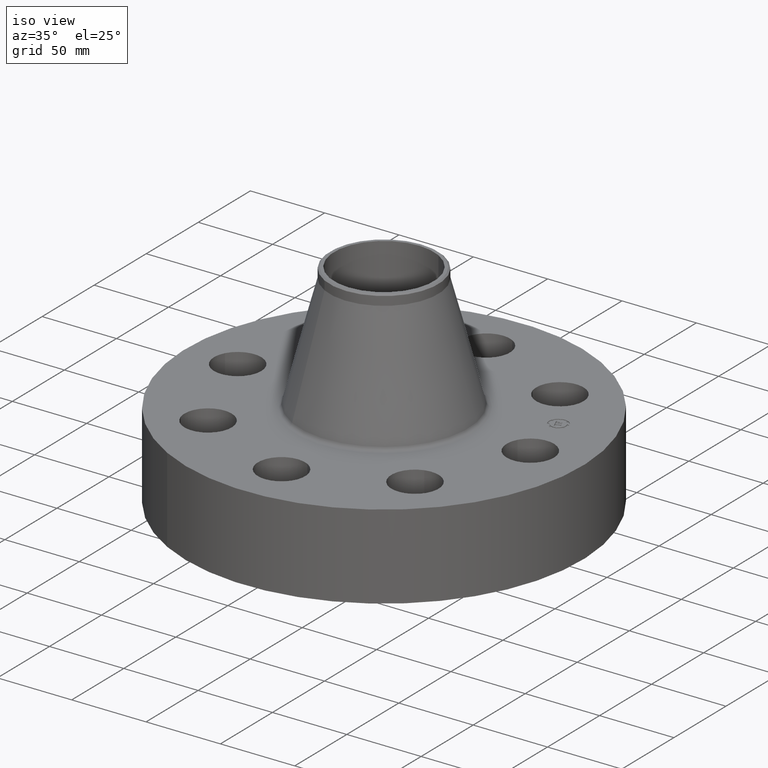
[diagram: clean part render]
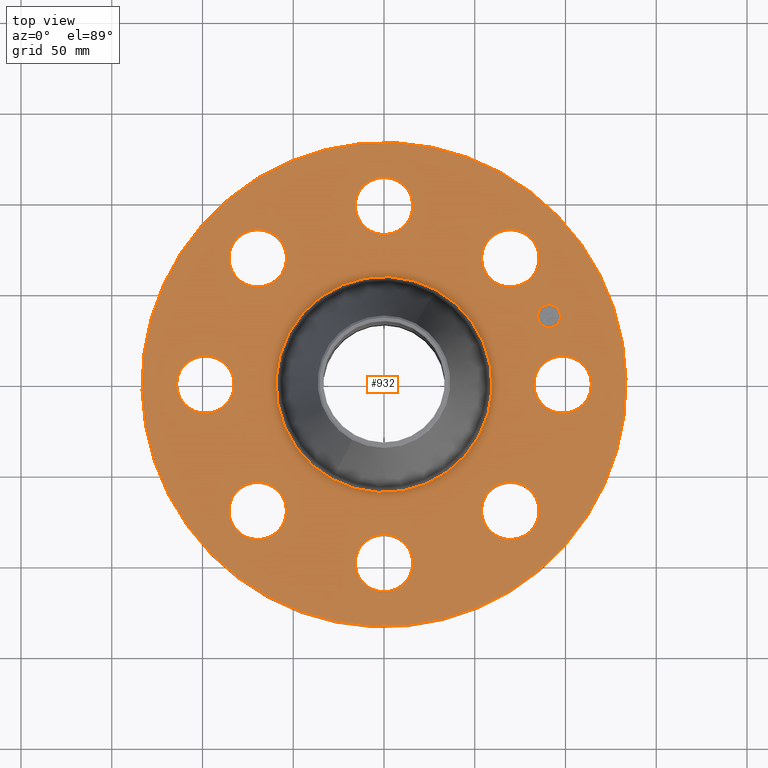
[diagram: tour spotlight — one face highlighted and labeled with its STEP entity id]
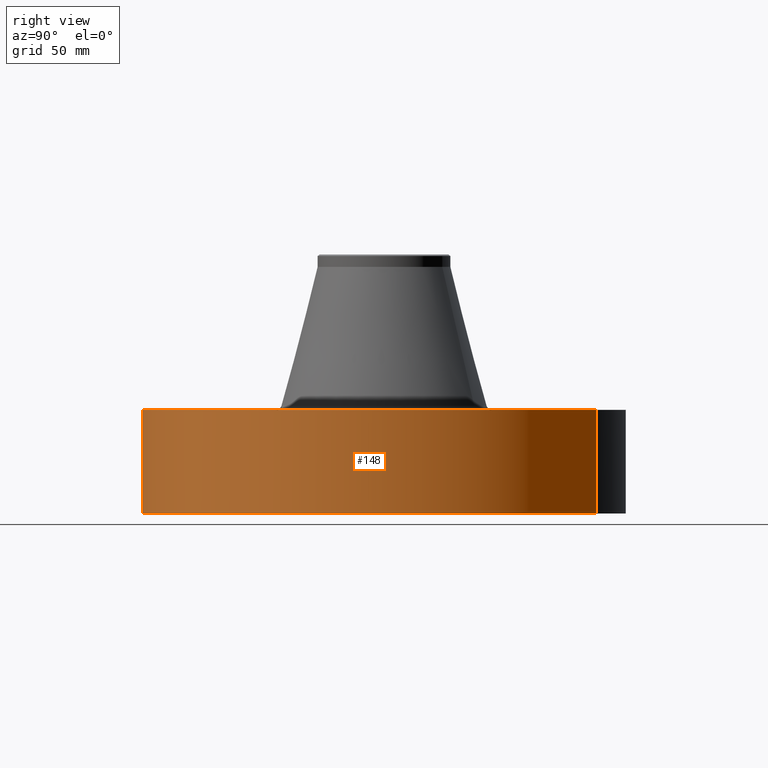
[diagram: tour spotlight — one face highlighted and labeled with its STEP entity id]
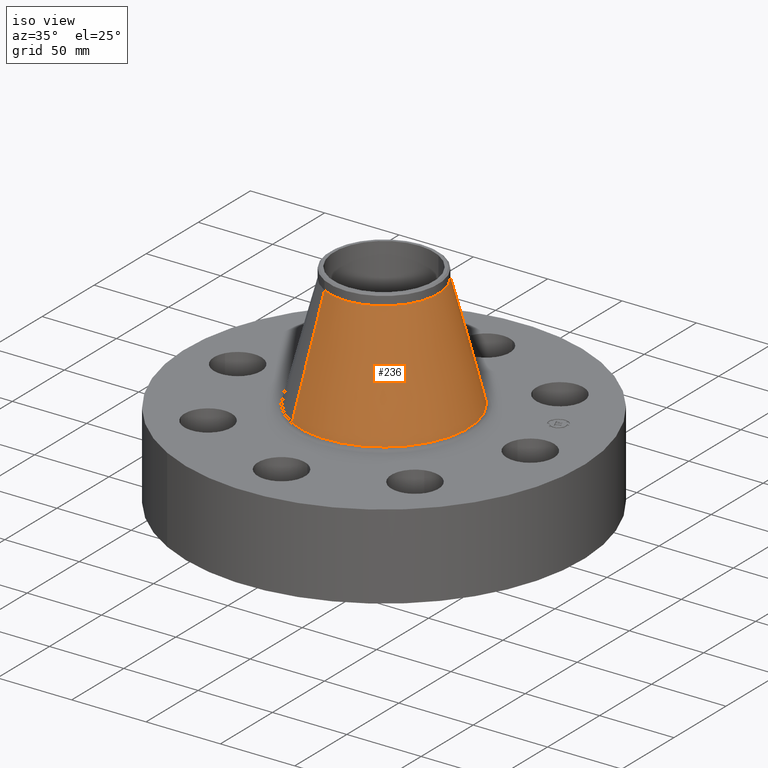
[diagram: tour spotlight — one face highlighted and labeled with its STEP entity id]
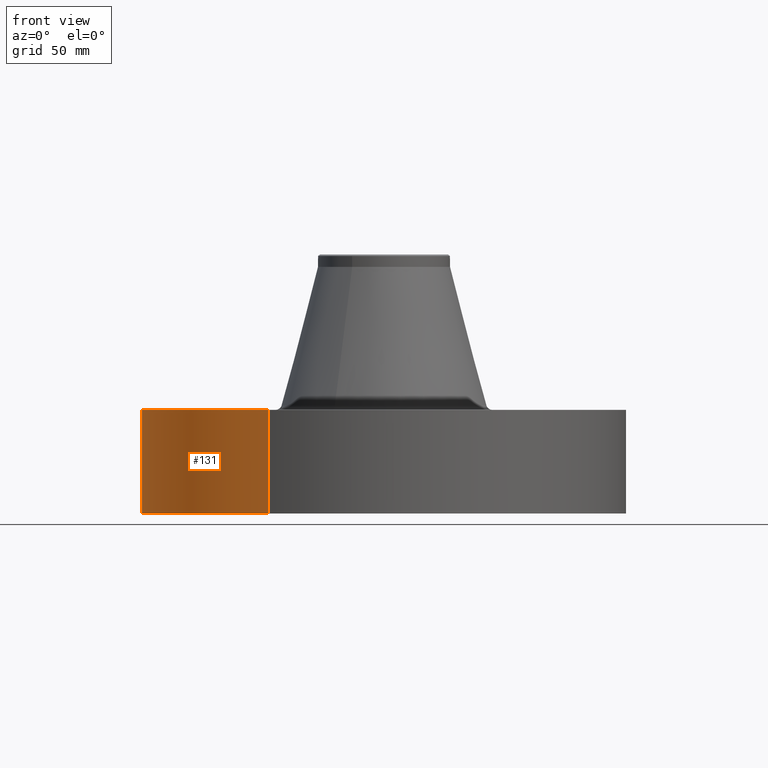
[diagram: tour spotlight — one face highlighted and labeled with its STEP entity id]
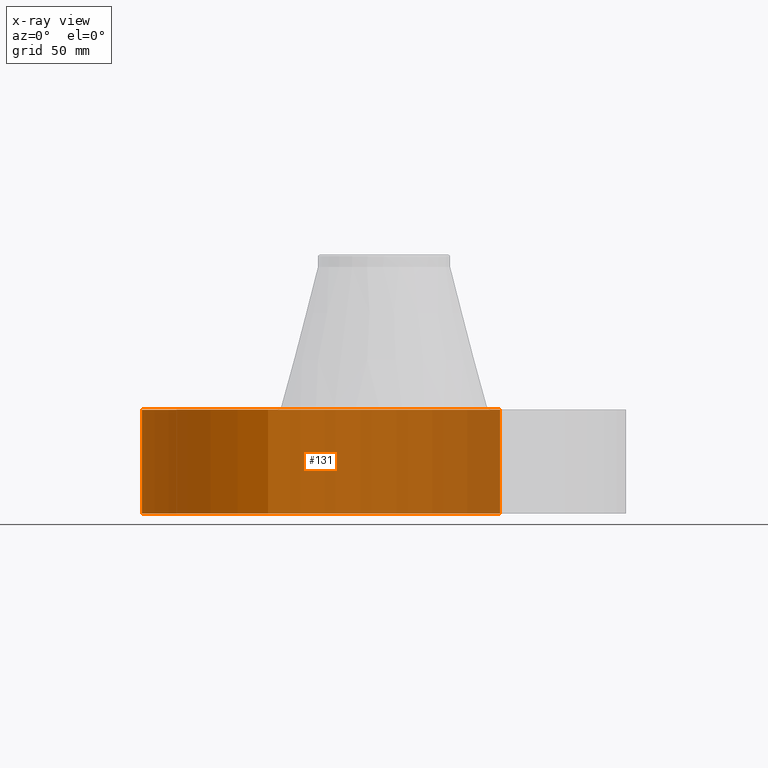
[diagram: x-ray of the same camera — body ghosted, this tour face saturated]
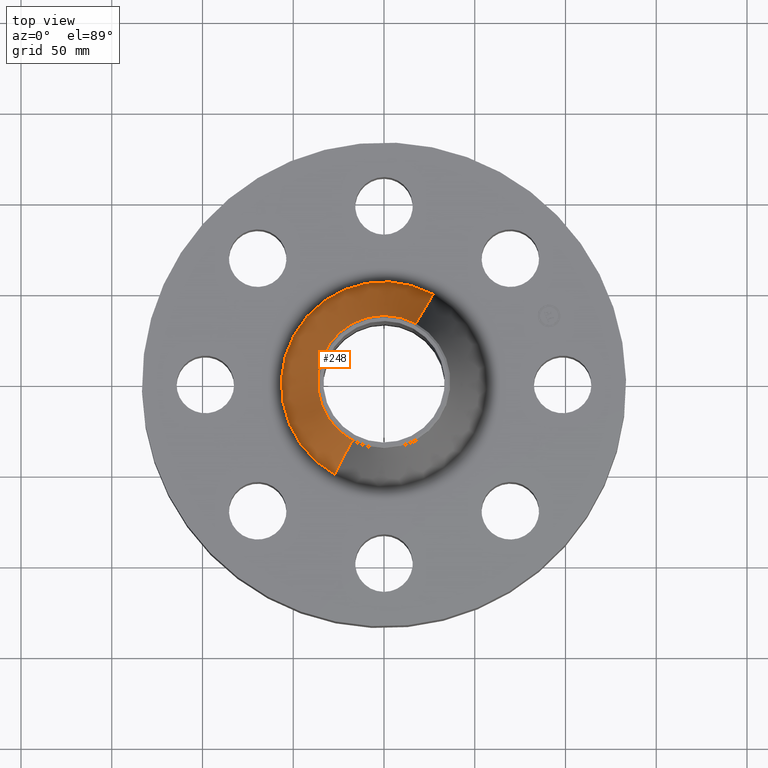
[diagram: tour spotlight — one face highlighted and labeled with its STEP entity id]
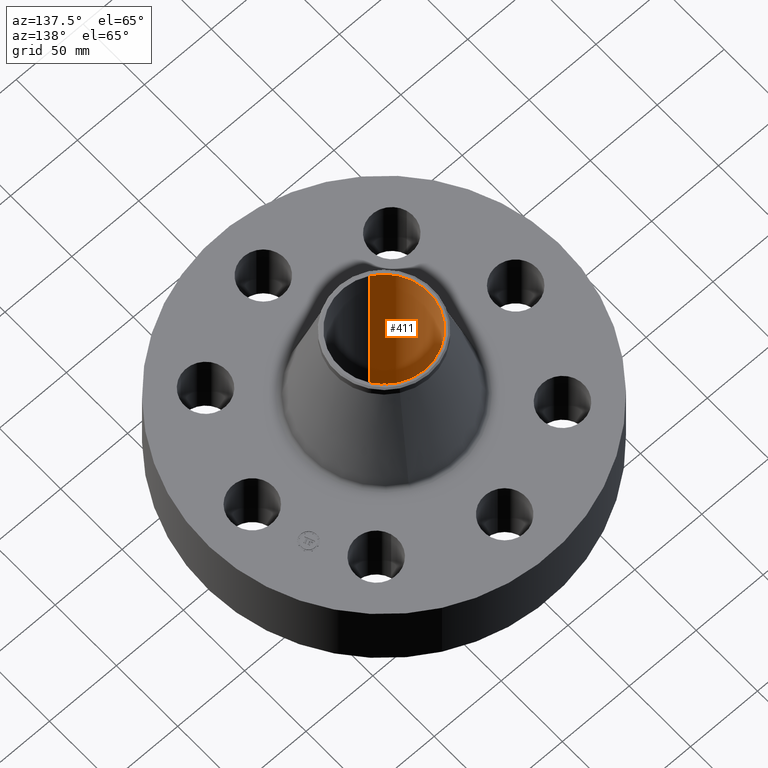
[diagram: tour spotlight — one face highlighted and labeled with its STEP entity id]
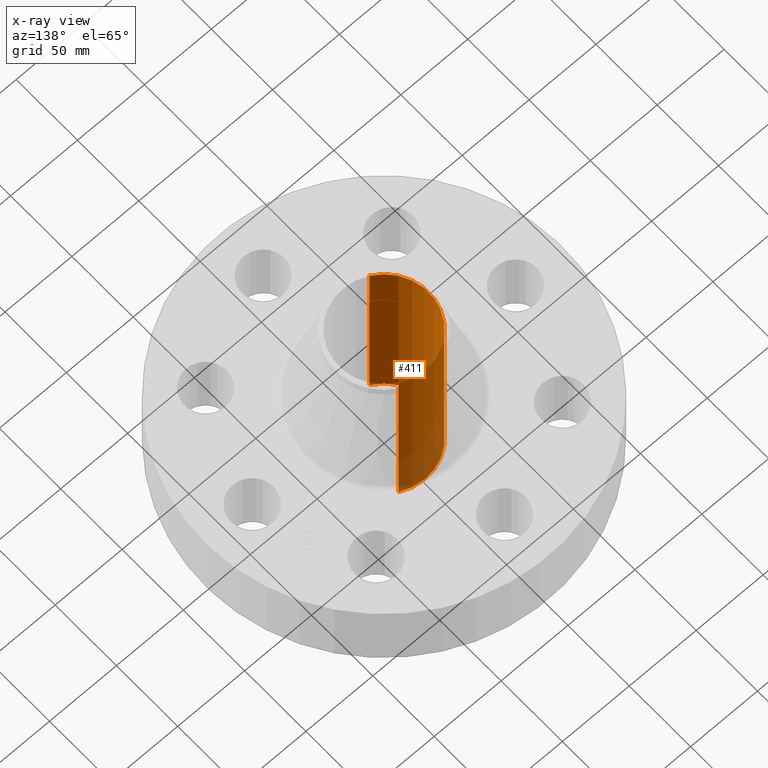
[diagram: x-ray of the same camera — body ghosted, this tour face saturated]
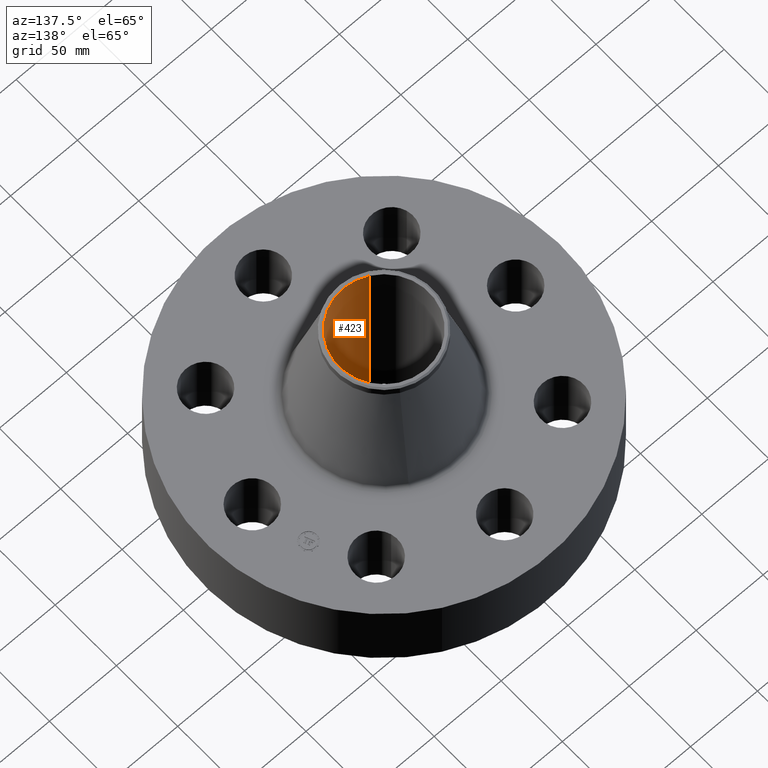
[diagram: tour spotlight — one face highlighted and labeled with its STEP entity id]
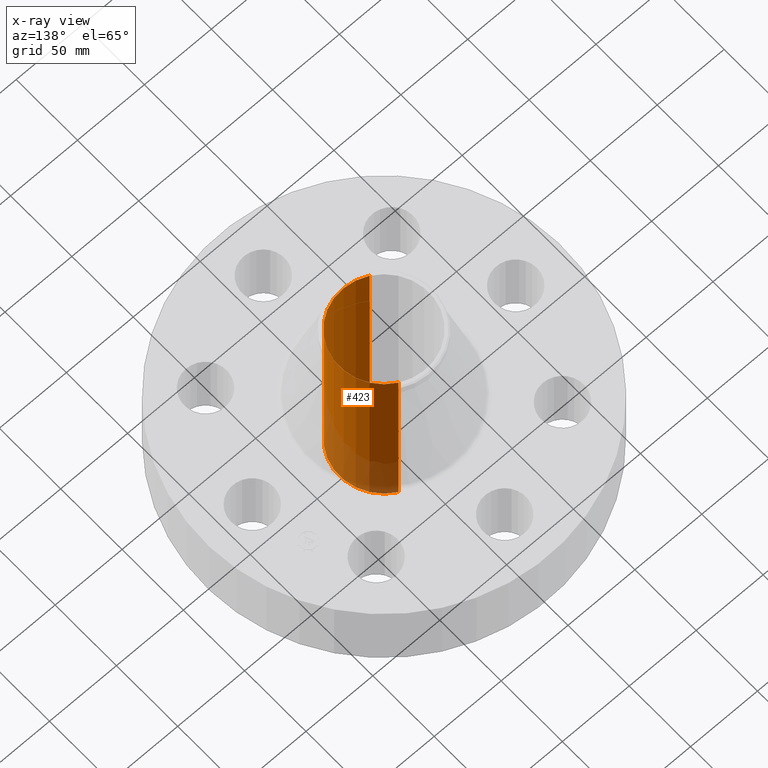
[diagram: x-ray of the same camera — body ghosted, this tour face saturated]
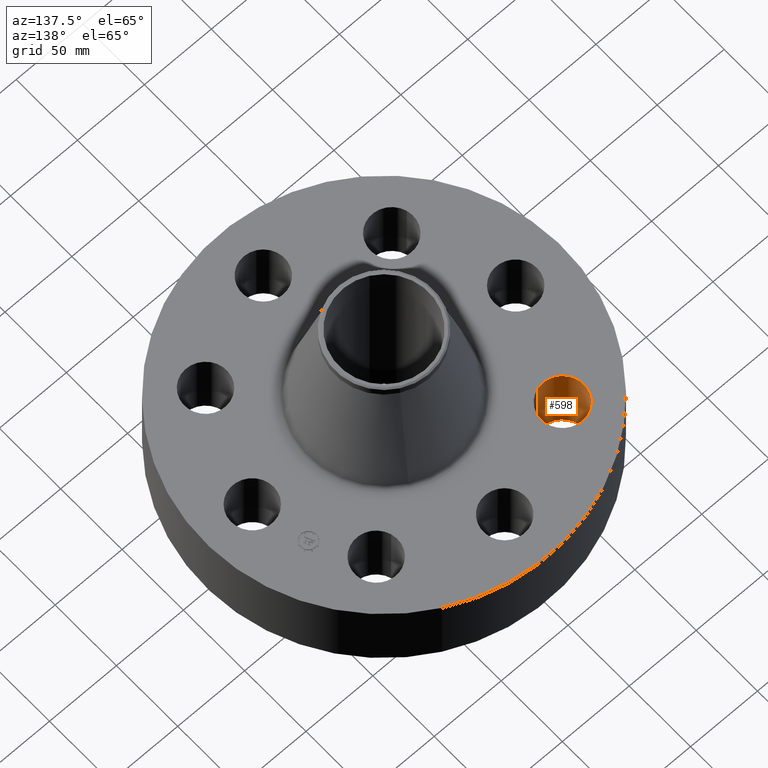
[diagram: tour spotlight — one face highlighted and labeled with its STEP entity id]
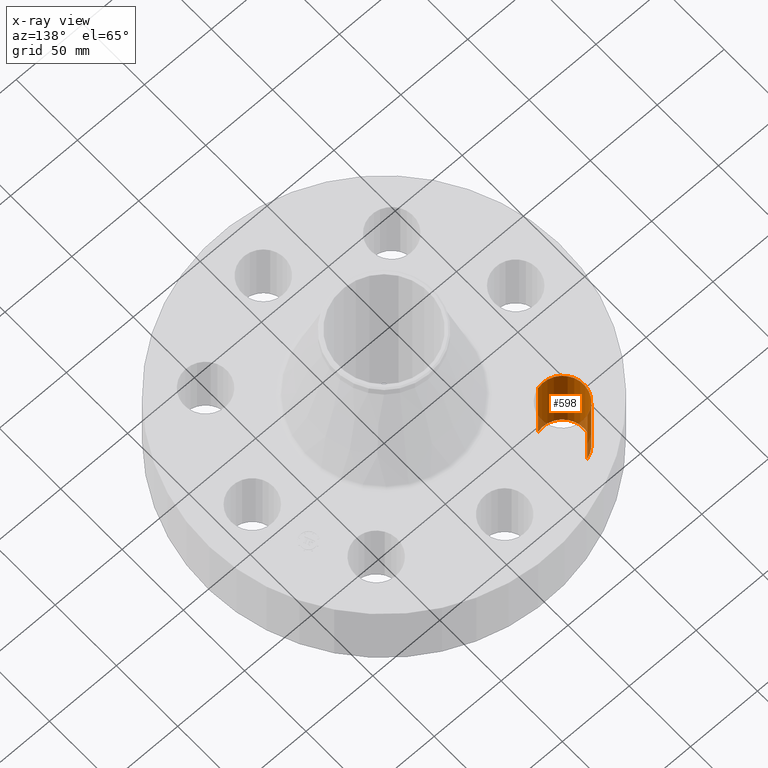
[diagram: x-ray of the same camera — body ghosted, this tour face saturated]
A machine part: a face-by-face anatomy tour. The part has 416 B-rep faces; the first image is the clean iso view, then the 8 largest visible faces are spotlighted one at a time (largest first), each with its STEP entity span.

Face 1 — top view, entity #932. In plain terms, the highlighted planar face has unit normal (0, 0, -1).
Definition (entity closure, byte-faithful):
#65=AXIS2_PLACEMENT_3D('Circle Axis2P3D',#63,#64,$) ;
#82=AXIS2_PLACEMENT_3D('Circle Axis2P3D',#80,#81,$) ;
#115=AXIS2_PLACEMENT_3D('Circle Axis2P3D',#113,#114,$) ;
#139=AXIS2_PLACEMENT_3D('Circle Axis2P3D',#137,#138,$) ;
#156=AXIS2_PLACEMENT_3D('Circle Axis2P3D',#154,#155,$) ;
#191=AXIS2_PLACEMENT_3D('Circle Axis2P3D',#189,#190,$) ;
#589=AXIS2_PLACEMENT_3D('Circle Axis2P3D',#587,#588,$) ;
#601=AXIS2_PLACEMENT_3D('Circle Axis2P3D',#599,#600,$) ;
#632=AXIS2_PLACEMENT_3D('Circle Axis2P3D',#630,#631,$) ;
#644=AXIS2_PLACEMENT_3D('Circle Axis2P3D',#642,#643,$) ;
#675=AXIS2_PLACEMENT_3D('Circle Axis2P3D',#673,#674,$) ;
#687=AXIS2_PLACEMENT_3D('Circle Axis2P3D',#685,#686,$) ;
#718=AXIS2_PLACEMENT_3D('Circle Axis2P3D',#716,#717,$) ;
#730=AXIS2_PLACEMENT_3D('Circle Axis2P3D',#728,#729,$) ;
#761=AXIS2_PLACEMENT_3D('Circle Axis2P3D',#759,#760,$) ;
#773=AXIS2_PLACEMENT_3D('Circle Axis2P3D',#771,#772,$) ;
#804=AXIS2_PLACEMENT_3D('Circle Axis2P3D',#802,#803,$) ;
#816=AXIS2_PLACEMENT_3D('Circle Axis2P3D',#814,#815,$) ;
#847=AXIS2_PLACEMENT_3D('Circle Axis2P3D',#845,#846,$) ;
#859=AXIS2_PLACEMENT_3D('Circle Axis2P3D',#857,#858,$) ;
#872=AXIS2_PLACEMENT_3D('Plane Axis2P3D',#869,#870,#871) ;
#916=AXIS2_PLACEMENT_3D('Circle Axis2P3D',#914,#915,$) ;
#925=AXIS2_PLACEMENT_3D('Circle Axis2P3D',#923,#924,$) ;
#46=CARTESIAN_POINT('Vertex',(3.32651089883,0.299640961629,2.25000000001)) ;
#60=CARTESIAN_POINT('Vertex',(4.4234891012,-0.299640961629,2.25000000001)) ;
#63=CARTESIAN_POINT('Axis2P3D Location',(3.87500000002,0.,2.25000000001)) ;
#80=CARTESIAN_POINT('Axis2P3D Location',(3.87500000002,0.,2.25000000001)) ;
#110=CARTESIAN_POINT('Vertex',(-2.51698407768,-4.60730844994,2.25000000001)) ;
#113=CARTESIAN_POINT('Axis2P3D Location',(0.,0.,2.25000000001)) ;
#117=CARTESIAN_POINT('Vertex',(2.51698407768,4.60730844994,2.25000000001)) ;
#137=CARTESIAN_POINT('Axis2P3D Location',(0.,0.,2.25000000001)) ;
#154=CARTESIAN_POINT('Axis2P3D Location',(0.,0.,2.25000000001)) ;
#158=CARTESIAN_POINT('Vertex',(1.12313842195,2.05589109117,2.25000000001)) ;
#160=CARTESIAN_POINT('Vertex',(-1.12313842195,-2.05589109117,2.25000000001)) ;
#189=CARTESIAN_POINT('Axis2P3D Location',(0.,0.,2.25000000001)) ;
#577=CARTESIAN_POINT('Vertex',(-2.56407657014,2.14032025837,2.25000000001)) ;
#584=CARTESIAN_POINT('Vertex',(-2.91600098407,3.33975729585,2.25000000001)) ;
#587=CARTESIAN_POINT('Axis2P3D Location',(-2.74003877711,2.74003877711,2.25000000001)) ;
#599=CARTESIAN_POINT('Axis2P3D Location',(-2.74003877711,2.74003877711,2.25000000001)) ;
#620=CARTESIAN_POINT('Vertex',(0.299640961629,-3.32651089883,2.25000000001)) ;
#627=CARTESIAN_POINT('Vertex',(-0.299640961629,-4.4234891012,2.25000000001)) ;
#630=CARTESIAN_POINT('Axis2P3D Location',(2.37275317336E-016,-3.87500000002,2.25000000001)) ;
#642=CARTESIAN_POINT('Axis2P3D Location',(2.37275317336E-016,-3.87500000002,2.25000000001)) ;
#663=CARTESIAN_POINT('Vertex',(-0.299640961629,3.32651089883,2.25000000001)) ;
#670=CARTESIAN_POINT('Vertex',(0.299640961629,4.4234891012,2.25000000001)) ;
#673=CARTESIAN_POINT('Axis2P3D Location',(-1.52343482905E-016,3.87500000002,2.25000000001)) ;
#685=CARTESIAN_POINT('Axis2P3D Location',(-1.52343482905E-016,3.87500000002,2.25000000001)) ;
#706=CARTESIAN_POINT('Vertex',(-2.14032025837,-2.56407657014,2.25000000001)) ;
#713=CARTESIAN_POINT('Vertex',(-3.33975729585,-2.91600098407,2.25000000001)) ;
#716=CARTESIAN_POINT('Axis2P3D Location',(-2.74003877711,-2.74003877711,2.25000000001)) ;
#728=CARTESIAN_POINT('Axis2P3D Location',(-2.74003877711,-2.74003877711,2.25000000001)) ;
#749=CARTESIAN_POINT('Vertex',(2.14032025837,2.56407657014,2.25000000001)) ;
#756=CARTESIAN_POINT('Vertex',(3.33975729585,2.91600098407,2.25000000001)) ;
#759=CARTESIAN_POINT('Axis2P3D Location',(2.74003877711,2.74003877711,2.25000000001)) ;
#771=CARTESIAN_POINT('Axis2P3D Location',(2.74003877711,2.74003877711,2.25000000001)) ;
#792=CARTESIAN_POINT('Vertex',(-3.32651089883,-0.299640961629,2.25000000001)) ;
#799=CARTESIAN_POINT('Vertex',(-4.4234891012,0.299640961629,2.25000000001)) ;
#802=CARTESIAN_POINT('Axis2P3D Location',(-3.87500000002,-4.74550634671E-016,2.25000000001)) ;
#814=CARTESIAN_POINT('Axis2P3D Location',(-3.87500000002,-4.74550634671E-016,2.25000000001)) ;
#835=CARTESIAN_POINT('Vertex',(2.56407657014,-2.14032025837,2.25000000001)) ;
#842=CARTESIAN_POINT('Vertex',(2.91600098407,-3.33975729585,2.25000000001)) ;
#845=CARTESIAN_POINT('Axis2P3D Location',(2.74003877711,-2.74003877711,2.25000000001)) ;
#857=CARTESIAN_POINT('Axis2P3D Location',(2.74003877711,-2.74003877711,2.25000000001)) ;
#869=CARTESIAN_POINT('Axis2P3D Location',(0.,5.25000000002,2.25000000001)) ;
#914=CARTESIAN_POINT('Axis2P3D Location',(3.5800331885,1.48289830042,2.25000000001)) ;
#918=CARTESIAN_POINT('Vertex',(3.48531903898,1.71155848472,2.25000000001)) ;
#920=CARTESIAN_POINT('Vertex',(3.67474733801,1.25423811612,2.25000000001)) ;
#923=CARTESIAN_POINT('Axis2P3D Location',(3.5800331885,1.48289830042,2.25000000001)) ;
#64=DIRECTION('Axis2P3D Direction',(0.,-0.,-0.0393700787402)) ;
#81=DIRECTION('Axis2P3D Direction',(0.,-0.,-0.0393700787402)) ;
#114=DIRECTION('Axis2P3D Direction',(0.,0.,-0.0393700787402)) ;
#138=DIRECTION('Axis2P3D Direction',(0.,0.,-0.0393700787402)) ;
#155=DIRECTION('Axis2P3D Direction',(0.,0.,-0.0393700787402)) ;
#190=DIRECTION('Axis2P3D Direction',(0.,0.,-0.0393700787402)) ;
#588=DIRECTION('Axis2P3D Direction',(0.,0.,-0.0393700787402)) ;
#600=DIRECTION('Axis2P3D Direction',(0.,0.,-0.0393700787402)) ;
#631=DIRECTION('Axis2P3D Direction',(0.,-0.,-0.0393700787402)) ;
#643=DIRECTION('Axis2P3D Direction',(0.,-0.,-0.0393700787402)) ;
#674=DIRECTION('Axis2P3D Direction',(0.,0.,-0.0393700787402)) ;
#686=DIRECTION('Axis2P3D Direction',(0.,0.,-0.0393700787402)) ;
#717=DIRECTION('Axis2P3D Direction',(-0.,0.,-0.0393700787402)) ;
#729=DIRECTION('Axis2P3D Direction',(-0.,0.,-0.0393700787402)) ;
#760=DIRECTION('Axis2P3D Direction',(0.,0.,-0.0393700787402)) ;
#772=DIRECTION('Axis2P3D Direction',(0.,0.,-0.0393700787402)) ;
#803=DIRECTION('Axis2P3D Direction',(-0.,0.,-0.0393700787402)) ;
#815=DIRECTION('Axis2P3D Direction',(-0.,0.,-0.0393700787402)) ;
#846=DIRECTION('Axis2P3D Direction',(0.,-0.,-0.0393700787402)) ;
#858=DIRECTION('Axis2P3D Direction',(0.,-0.,-0.0393700787402)) ;
#870=DIRECTION('Axis2P3D Direction',(0.,0.,-0.0393700787402)) ;
#871=DIRECTION('Axis2P3D XDirection',(0.0393700787402,0.,0.)) ;
#915=DIRECTION('Axis2P3D Direction',(0.,0.,-0.0393700787402)) ;
#924=DIRECTION('Axis2P3D Direction',(0.,0.,-0.0393700787402)) ;
#875=ORIENTED_EDGE('',*,*,#141,.F.) ;
#876=ORIENTED_EDGE('',*,*,#119,.F.) ;
#879=ORIENTED_EDGE('',*,*,#67,.T.) ;
#880=ORIENTED_EDGE('',*,*,#84,.T.) ;
#883=ORIENTED_EDGE('',*,*,#193,.T.) ;
#884=ORIENTED_EDGE('',*,*,#162,.T.) ;
#887=ORIENTED_EDGE('',*,*,#861,.T.) ;
#888=ORIENTED_EDGE('',*,*,#849,.T.) ;
#891=ORIENTED_EDGE('',*,*,#646,.T.) ;
#892=ORIENTED_EDGE('',*,*,#634,.T.) ;
#895=ORIENTED_EDGE('',*,*,#732,.T.) ;
#896=ORIENTED_EDGE('',*,*,#720,.T.) ;
#899=ORIENTED_EDGE('',*,*,#818,.T.) ;
#900=ORIENTED_EDGE('',*,*,#806,.T.) ;
#903=ORIENTED_EDGE('',*,*,#603,.T.) ;
#904=ORIENTED_EDGE('',*,*,#591,.T.) ;
#907=ORIENTED_EDGE('',*,*,#689,.T.) ;
#908=ORIENTED_EDGE('',*,*,#677,.T.) ;
#911=ORIENTED_EDGE('',*,*,#775,.T.) ;
#912=ORIENTED_EDGE('',*,*,#763,.T.) ;
#929=ORIENTED_EDGE('',*,*,#922,.T.) ;
#930=ORIENTED_EDGE('',*,*,#927,.T.) ;
#881=FACE_BOUND('',#878,.T.) ;
#885=FACE_BOUND('',#882,.T.) ;
#889=FACE_BOUND('',#886,.T.) ;
#893=FACE_BOUND('',#890,.T.) ;
#897=FACE_BOUND('',#894,.T.) ;
#901=FACE_BOUND('',#898,.T.) ;
#905=FACE_BOUND('',#902,.T.) ;
#909=FACE_BOUND('',#906,.T.) ;
#913=FACE_BOUND('',#910,.T.) ;
#931=FACE_BOUND('',#928,.T.) ;
#932=ADVANCED_FACE('PartBody',(#877,#881,#885,#889,#893,#897,#901,#905,#909,#913,#931),#873,.F.) ;
#66=CIRCLE('generated circle',#65,0.625000000002) ;
#83=CIRCLE('generated circle',#82,0.625000000002) ;
#116=CIRCLE('generated circle',#115,5.25000000002) ;
#140=CIRCLE('generated circle',#139,5.25000000002) ;
#157=CIRCLE('generated circle',#156,2.34267541362) ;
#192=CIRCLE('generated circle',#191,2.34267541362) ;
#590=CIRCLE('generated circle',#589,0.625000000003) ;
#602=CIRCLE('generated circle',#601,0.625000000003) ;
#633=CIRCLE('generated circle',#632,0.625000000002) ;
#645=CIRCLE('generated circle',#644,0.625000000002) ;
#676=CIRCLE('generated circle',#675,0.625000000002) ;
#688=CIRCLE('generated circle',#687,0.625000000002) ;
#719=CIRCLE('generated circle',#718,0.625000000002) ;
#731=CIRCLE('generated circle',#730,0.625000000002) ;
#762=CIRCLE('generated circle',#761,0.625000000003) ;
#774=CIRCLE('generated circle',#773,0.625000000003) ;
#805=CIRCLE('generated circle',#804,0.625000000002) ;
#817=CIRCLE('generated circle',#816,0.625000000002) ;
#848=CIRCLE('generated circle',#847,0.625000000002) ;
#860=CIRCLE('generated circle',#859,0.625000000002) ;
#917=CIRCLE('generated circle',#916,0.247500000001) ;
#926=CIRCLE('generated circle',#925,0.247500000001) ;
#67=EDGE_CURVE('',#47,#61,#66,.T.) ;
#84=EDGE_CURVE('',#61,#47,#83,.T.) ;
#119=EDGE_CURVE('',#111,#118,#116,.T.) ;
#141=EDGE_CURVE('',#118,#111,#140,.T.) ;
#162=EDGE_CURVE('',#159,#161,#157,.T.) ;
#193=EDGE_CURVE('',#161,#159,#192,.T.) ;
#591=EDGE_CURVE('',#578,#585,#590,.T.) ;
#603=EDGE_CURVE('',#585,#578,#602,.T.) ;
#634=EDGE_CURVE('',#621,#628,#633,.T.) ;
#646=EDGE_CURVE('',#628,#621,#645,.T.) ;
#677=EDGE_CURVE('',#664,#671,#676,.T.) ;
#689=EDGE_CURVE('',#671,#664,#688,.T.) ;
#720=EDGE_CURVE('',#707,#714,#719,.T.) ;
#732=EDGE_CURVE('',#714,#707,#731,.T.) ;
#763=EDGE_CURVE('',#750,#757,#762,.T.) ;
#775=EDGE_CURVE('',#757,#750,#774,.T.) ;
#806=EDGE_CURVE('',#793,#800,#805,.T.) ;
#818=EDGE_CURVE('',#800,#793,#817,.T.) ;
#849=EDGE_CURVE('',#836,#843,#848,.T.) ;
#861=EDGE_CURVE('',#843,#836,#860,.T.) ;
#922=EDGE_CURVE('',#919,#921,#917,.T.) ;
#927=EDGE_CURVE('',#921,#919,#926,.T.) ;
#874=EDGE_LOOP('',(#875,#876)) ;
#878=EDGE_LOOP('',(#879,#880)) ;
#882=EDGE_LOOP('',(#883,#884)) ;
#886=EDGE_LOOP('',(#887,#888)) ;
#890=EDGE_LOOP('',(#891,#892)) ;
#894=EDGE_LOOP('',(#895,#896)) ;
#898=EDGE_LOOP('',(#899,#900)) ;
#902=EDGE_LOOP('',(#903,#904)) ;
#906=EDGE_LOOP('',(#907,#908)) ;
#910=EDGE_LOOP('',(#911,#912)) ;
#928=EDGE_LOOP('',(#929,#930)) ;
#877=FACE_OUTER_BOUND('',#874,.T.) ;
#873=PLANE('',#872) ;
#47=VERTEX_POINT('',#46) ;
#61=VERTEX_POINT('',#60) ;
#111=VERTEX_POINT('',#110) ;
#118=VERTEX_POINT('',#117) ;
#159=VERTEX_POINT('',#158) ;
#161=VERTEX_POINT('',#160) ;
#578=VERTEX_POINT('',#577) ;
#585=VERTEX_POINT('',#584) ;
#621=VERTEX_POINT('',#620) ;
#628=VERTEX_POINT('',#627) ;
#664=VERTEX_POINT('',#663) ;
#671=VERTEX_POINT('',#670) ;
#707=VERTEX_POINT('',#706) ;
#714=VERTEX_POINT('',#713) ;
#750=VERTEX_POINT('',#749) ;
#757=VERTEX_POINT('',#756) ;
#793=VERTEX_POINT('',#792) ;
#800=VERTEX_POINT('',#799) ;
#836=VERTEX_POINT('',#835) ;
#843=VERTEX_POINT('',#842) ;
#919=VERTEX_POINT('',#918) ;
#921=VERTEX_POINT('',#920) ;

Face 2 — right view, entity #148. In plain terms, the highlighted cylindrical surface (partial cylindrical patch) has radius 133.35 mm, axis along (0, 0, -1).
Definition (entity closure, byte-faithful):
#95=AXIS2_PLACEMENT_3D('Cylinder Axis2P3D',#92,#93,#94) ;
#134=AXIS2_PLACEMENT_3D('Circle Axis2P3D',#132,#133,$) ;
#139=AXIS2_PLACEMENT_3D('Circle Axis2P3D',#137,#138,$) ;
#92=CARTESIAN_POINT('Axis2P3D Location',(0.,0.,2.81000000001)) ;
#101=CARTESIAN_POINT('Vertex',(-2.51698407768,-4.60730844994,5.59482469102E-016)) ;
#103=CARTESIAN_POINT('Vertex',(2.51698407768,4.60730844994,5.59482469102E-016)) ;
#106=CARTESIAN_POINT('Line Origine',(-2.51698407768,-4.60730844994,1.125)) ;
#110=CARTESIAN_POINT('Vertex',(-2.51698407768,-4.60730844994,2.25000000001)) ;
#117=CARTESIAN_POINT('Vertex',(2.51698407768,4.60730844994,2.25000000001)) ;
#120=CARTESIAN_POINT('Line Origine',(2.51698407768,4.60730844994,1.125)) ;
#132=CARTESIAN_POINT('Axis2P3D Location',(0.,0.,5.59482469102E-016)) ;
#137=CARTESIAN_POINT('Axis2P3D Location',(0.,0.,2.25000000001)) ;
#93=DIRECTION('Axis2P3D Direction',(0.,0.,-0.0393700787402)) ;
#94=DIRECTION('Axis2P3D XDirection',(0.0188750212049,0.0345504945626,0.)) ;
#107=DIRECTION('Vector Direction',(0.,0.,-0.0393700787402)) ;
#121=DIRECTION('Vector Direction',(0.,0.,-0.0393700787402)) ;
#133=DIRECTION('Axis2P3D Direction',(0.,0.,-0.0393700787402)) ;
#138=DIRECTION('Axis2P3D Direction',(0.,0.,-0.0393700787402)) ;
#108=VECTOR('Line Direction',#107,0.0393700787402) ;
#122=VECTOR('Line Direction',#121,0.0393700787402) ;
#143=ORIENTED_EDGE('',*,*,#136,.F.) ;
#144=ORIENTED_EDGE('',*,*,#124,.T.) ;
#145=ORIENTED_EDGE('',*,*,#141,.T.) ;
#146=ORIENTED_EDGE('',*,*,#112,.F.) ;
#148=ADVANCED_FACE('PartBody',(#147),#96,.T.) ;
#135=CIRCLE('generated circle',#134,5.25000000002) ;
#140=CIRCLE('generated circle',#139,5.25000000002) ;
#96=CYLINDRICAL_SURFACE('generated cylinder',#95,5.25000000002) ;
#112=EDGE_CURVE('',#102,#111,#109,.F.) ;
#124=EDGE_CURVE('',#104,#118,#123,.F.) ;
#136=EDGE_CURVE('',#104,#102,#135,.T.) ;
#141=EDGE_CURVE('',#118,#111,#140,.T.) ;
#142=EDGE_LOOP('',(#143,#144,#145,#146)) ;
#147=FACE_OUTER_BOUND('',#142,.T.) ;
#109=LINE('Line',#106,#108) ;
#123=LINE('Line',#120,#122) ;
#102=VERTEX_POINT('',#101) ;
#104=VERTEX_POINT('',#103) ;
#111=VERTEX_POINT('',#110) ;
#118=VERTEX_POINT('',#117) ;

Face 3 — iso view, entity #236. In plain terms, the highlighted conical surface has half-angle 14.643 deg.
Definition (entity closure, byte-faithful):
#172=AXIS2_PLACEMENT_3D('Circle Axis2P3D',#170,#171,$) ;
#209=AXIS2_PLACEMENT_3D('Cone Axis2P3D',#206,#207,#208) ;
#220=AXIS2_PLACEMENT_3D('Circle Axis2P3D',#218,#219,$) ;
#167=CARTESIAN_POINT('Vertex',(1.06747586368,1.9540014617,2.33966548149)) ;
#170=CARTESIAN_POINT('Axis2P3D Location',(0.,0.,2.33966548149)) ;
#174=CARTESIAN_POINT('Vertex',(-1.06747586368,-1.9540014617,2.33966548149)) ;
#206=CARTESIAN_POINT('Axis2P3D Location',(0.,0.,5.35020141943)) ;
#211=CARTESIAN_POINT('Line Origine',(0.878924319638,1.60886017541,3.84493345046)) ;
#215=CARTESIAN_POINT('Vertex',(0.690372775593,1.26371888913,5.35020141943)) ;
#218=CARTESIAN_POINT('Axis2P3D Location',(0.,0.,5.35020141943)) ;
#222=CARTESIAN_POINT('Vertex',(-0.690372775593,-1.26371888913,5.35020141943)) ;
#225=CARTESIAN_POINT('Line Origine',(-0.878924319638,-1.60886017541,3.84493345046)) ;
#171=DIRECTION('Axis2P3D Direction',(0.,0.,-0.0393700787402)) ;
#207=DIRECTION('Axis2P3D Direction',(0.,0.,-0.0393700787402)) ;
#208=DIRECTION('Axis2P3D XDirection',(-0.0188750212049,-0.0345504945626,0.)) ;
#212=DIRECTION('Vector Direction',(0.00477137233574,0.00873393847629,-0.0380914088048)) ;
#219=DIRECTION('Axis2P3D Direction',(0.,0.,-0.0393700787402)) ;
#226=DIRECTION('Vector Direction',(-0.00477137233574,-0.00873393847629,-0.0380914088048)) ;
#213=VECTOR('Line Direction',#212,0.0393700787402) ;
#227=VECTOR('Line Direction',#226,0.0393700787402) ;
#231=ORIENTED_EDGE('',*,*,#176,.F.) ;
#232=ORIENTED_EDGE('',*,*,#217,.T.) ;
#233=ORIENTED_EDGE('',*,*,#224,.T.) ;
#234=ORIENTED_EDGE('',*,*,#229,.F.) ;
#236=ADVANCED_FACE('PartBody',(#235),#210,.T.) ;
#173=CIRCLE('generated circle',#172,2.22657279959) ;
#221=CIRCLE('generated circle',#220,1.44000000001) ;
#210=CONICAL_SURFACE('Cone',#209,1.44000000001,0.255560407047) ;
#176=EDGE_CURVE('',#168,#175,#173,.T.) ;
#217=EDGE_CURVE('',#168,#216,#214,.F.) ;
#224=EDGE_CURVE('',#216,#223,#221,.T.) ;
#229=EDGE_CURVE('',#175,#223,#228,.F.) ;
#230=EDGE_LOOP('',(#231,#232,#233,#234)) ;
#235=FACE_OUTER_BOUND('',#230,.T.) ;
#214=LINE('Line',#211,#213) ;
#228=LINE('Line',#225,#227) ;
#168=VERTEX_POINT('',#167) ;
#175=VERTEX_POINT('',#174) ;
#216=VERTEX_POINT('',#215) ;
#223=VERTEX_POINT('',#222) ;

Face 4 — front view, entity #131. An x-ray twin of the same camera follows (body ghosted, this face saturated) — the face is partly hidden behind the body. In plain terms, the highlighted cylindrical surface (partial cylindrical patch) has radius 133.35 mm, axis along (0, 0, -1).
Definition (entity closure, byte-faithful):
#95=AXIS2_PLACEMENT_3D('Cylinder Axis2P3D',#92,#93,#94) ;
#99=AXIS2_PLACEMENT_3D('Circle Axis2P3D',#97,#98,$) ;
#115=AXIS2_PLACEMENT_3D('Circle Axis2P3D',#113,#114,$) ;
#92=CARTESIAN_POINT('Axis2P3D Location',(0.,0.,2.81000000001)) ;
#97=CARTESIAN_POINT('Axis2P3D Location',(0.,0.,5.59482469102E-016)) ;
#101=CARTESIAN_POINT('Vertex',(-2.51698407768,-4.60730844994,5.59482469102E-016)) ;
#103=CARTESIAN_POINT('Vertex',(2.51698407768,4.60730844994,5.59482469102E-016)) ;
#106=CARTESIAN_POINT('Line Origine',(-2.51698407768,-4.60730844994,1.125)) ;
#110=CARTESIAN_POINT('Vertex',(-2.51698407768,-4.60730844994,2.25000000001)) ;
#113=CARTESIAN_POINT('Axis2P3D Location',(0.,0.,2.25000000001)) ;
#117=CARTESIAN_POINT('Vertex',(2.51698407768,4.60730844994,2.25000000001)) ;
#120=CARTESIAN_POINT('Line Origine',(2.51698407768,4.60730844994,1.125)) ;
#93=DIRECTION('Axis2P3D Direction',(0.,0.,-0.0393700787402)) ;
#94=DIRECTION('Axis2P3D XDirection',(0.0188750212049,0.0345504945626,0.)) ;
#98=DIRECTION('Axis2P3D Direction',(0.,0.,-0.0393700787402)) ;
#107=DIRECTION('Vector Direction',(0.,0.,-0.0393700787402)) ;
#114=DIRECTION('Axis2P3D Direction',(0.,0.,-0.0393700787402)) ;
#121=DIRECTION('Vector Direction',(0.,0.,-0.0393700787402)) ;
#108=VECTOR('Line Direction',#107,0.0393700787402) ;
#122=VECTOR('Line Direction',#121,0.0393700787402) ;
#126=ORIENTED_EDGE('',*,*,#105,.F.) ;
#127=ORIENTED_EDGE('',*,*,#112,.T.) ;
#128=ORIENTED_EDGE('',*,*,#119,.T.) ;
#129=ORIENTED_EDGE('',*,*,#124,.F.) ;
#131=ADVANCED_FACE('PartBody',(#130),#96,.T.) ;
#100=CIRCLE('generated circle',#99,5.25000000002) ;
#116=CIRCLE('generated circle',#115,5.25000000002) ;
#96=CYLINDRICAL_SURFACE('generated cylinder',#95,5.25000000002) ;
#105=EDGE_CURVE('',#102,#104,#100,.T.) ;
#112=EDGE_CURVE('',#102,#111,#109,.F.) ;
#119=EDGE_CURVE('',#111,#118,#116,.T.) ;
#124=EDGE_CURVE('',#104,#118,#123,.F.) ;
#125=EDGE_LOOP('',(#126,#127,#128,#129)) ;
#130=FACE_OUTER_BOUND('',#125,.T.) ;
#109=LINE('Line',#106,#108) ;
#123=LINE('Line',#120,#122) ;
#102=VERTEX_POINT('',#101) ;
#104=VERTEX_POINT('',#103) ;
#111=VERTEX_POINT('',#110) ;
#118=VERTEX_POINT('',#117) ;

Face 5 — top view, entity #248. In plain terms, the highlighted conical surface has half-angle 14.643 deg.
Definition (entity closure, byte-faithful):
#196=AXIS2_PLACEMENT_3D('Circle Axis2P3D',#194,#195,$) ;
#209=AXIS2_PLACEMENT_3D('Cone Axis2P3D',#206,#207,#208) ;
#239=AXIS2_PLACEMENT_3D('Circle Axis2P3D',#237,#238,$) ;
#167=CARTESIAN_POINT('Vertex',(1.06747586368,1.9540014617,2.33966548149)) ;
#174=CARTESIAN_POINT('Vertex',(-1.06747586368,-1.9540014617,2.33966548149)) ;
#194=CARTESIAN_POINT('Axis2P3D Location',(0.,0.,2.33966548149)) ;
#206=CARTESIAN_POINT('Axis2P3D Location',(0.,0.,5.35020141943)) ;
#211=CARTESIAN_POINT('Line Origine',(0.878924319638,1.60886017541,3.84493345046)) ;
#215=CARTESIAN_POINT('Vertex',(0.690372775593,1.26371888913,5.35020141943)) ;
#222=CARTESIAN_POINT('Vertex',(-0.690372775593,-1.26371888913,5.35020141943)) ;
#225=CARTESIAN_POINT('Line Origine',(-0.878924319638,-1.60886017541,3.84493345046)) ;
#237=CARTESIAN_POINT('Axis2P3D Location',(0.,0.,5.35020141943)) ;
#195=DIRECTION('Axis2P3D Direction',(0.,0.,-0.0393700787402)) ;
#207=DIRECTION('Axis2P3D Direction',(0.,0.,-0.0393700787402)) ;
#208=DIRECTION('Axis2P3D XDirection',(-0.0188750212049,-0.0345504945626,0.)) ;
#212=DIRECTION('Vector Direction',(0.00477137233574,0.00873393847629,-0.0380914088048)) ;
#226=DIRECTION('Vector Direction',(-0.00477137233574,-0.00873393847629,-0.0380914088048)) ;
#238=DIRECTION('Axis2P3D Direction',(0.,0.,-0.0393700787402)) ;
#213=VECTOR('Line Direction',#212,0.0393700787402) ;
#227=VECTOR('Line Direction',#226,0.0393700787402) ;
#243=ORIENTED_EDGE('',*,*,#198,.F.) ;
#244=ORIENTED_EDGE('',*,*,#229,.T.) ;
#245=ORIENTED_EDGE('',*,*,#241,.T.) ;
#246=ORIENTED_EDGE('',*,*,#217,.F.) ;
#248=ADVANCED_FACE('PartBody',(#247),#210,.T.) ;
#197=CIRCLE('generated circle',#196,2.22657279959) ;
#240=CIRCLE('generated circle',#239,1.44000000001) ;
#210=CONICAL_SURFACE('Cone',#209,1.44000000001,0.255560407047) ;
#198=EDGE_CURVE('',#175,#168,#197,.T.) ;
#217=EDGE_CURVE('',#168,#216,#214,.F.) ;
#229=EDGE_CURVE('',#175,#223,#228,.F.) ;
#241=EDGE_CURVE('',#223,#216,#240,.T.) ;
#242=EDGE_LOOP('',(#243,#244,#245,#246)) ;
#247=FACE_OUTER_BOUND('',#242,.T.) ;
#214=LINE('Line',#211,#213) ;
#228=LINE('Line',#225,#227) ;
#168=VERTEX_POINT('',#167) ;
#175=VERTEX_POINT('',#174) ;
#216=VERTEX_POINT('',#215) ;
#223=VERTEX_POINT('',#222) ;

Face 6 — auxiliary view, entity #411. An x-ray twin of the same camera follows (body ghosted, this face saturated) — the face is partly hidden behind the body. In plain terms, the highlighted cylindrical surface (partial cylindrical patch) has radius 33.4645 mm, axis along (0, 0, -1).
Definition (entity closure, byte-faithful):
#356=AXIS2_PLACEMENT_3D('Circle Axis2P3D',#354,#355,$) ;
#384=AXIS2_PLACEMENT_3D('Cylinder Axis2P3D',#381,#382,#383) ;
#395=AXIS2_PLACEMENT_3D('Circle Axis2P3D',#393,#394,$) ;
#354=CARTESIAN_POINT('Axis2P3D Location',(0.,0.,5.62000000002)) ;
#358=CARTESIAN_POINT('Vertex',(-0.631643147114,-1.1562150253,5.62000000002)) ;
#360=CARTESIAN_POINT('Vertex',(0.631643147114,1.1562150253,5.62000000002)) ;
#381=CARTESIAN_POINT('Axis2P3D Location',(0.,0.,2.81000000001)) ;
#386=CARTESIAN_POINT('Line Origine',(-0.631643147114,-1.1562150253,2.81000000001)) ;
#390=CARTESIAN_POINT('Vertex',(-0.631643147114,-1.1562150253,-5.59482469102E-015)) ;
#393=CARTESIAN_POINT('Axis2P3D Location',(0.,0.,-6.71378962923E-015)) ;
#397=CARTESIAN_POINT('Vertex',(0.631643147114,1.1562150253,-5.59482469102E-015)) ;
#400=CARTESIAN_POINT('Line Origine',(0.631643147114,1.1562150253,2.81000000001)) ;
#355=DIRECTION('Axis2P3D Direction',(0.,0.,-0.0393700787402)) ;
#382=DIRECTION('Axis2P3D Direction',(0.,0.,-0.0393700787402)) ;
#383=DIRECTION('Axis2P3D XDirection',(0.0188750212049,0.0345504945626,0.)) ;
#387=DIRECTION('Vector Direction',(0.,0.,-0.0393700787402)) ;
#394=DIRECTION('Axis2P3D Direction',(0.,0.,-0.0393700787402)) ;
#401=DIRECTION('Vector Direction',(0.,0.,-0.0393700787402)) ;
#388=VECTOR('Line Direction',#387,0.0393700787402) ;
#402=VECTOR('Line Direction',#401,0.0393700787402) ;
#406=ORIENTED_EDGE('',*,*,#362,.F.) ;
#407=ORIENTED_EDGE('',*,*,#392,.T.) ;
#408=ORIENTED_EDGE('',*,*,#399,.T.) ;
#409=ORIENTED_EDGE('',*,*,#404,.F.) ;
#411=ADVANCED_FACE('PartBody',(#410),#385,.F.) ;
#357=CIRCLE('generated circle',#356,1.31750000001) ;
#396=CIRCLE('generated circle',#395,1.31750000001) ;
#385=CYLINDRICAL_SURFACE('generated cylinder',#384,1.31750000001) ;
#362=EDGE_CURVE('',#359,#361,#357,.T.) ;
#392=EDGE_CURVE('',#359,#391,#389,.T.) ;
#399=EDGE_CURVE('',#391,#398,#396,.T.) ;
#404=EDGE_CURVE('',#361,#398,#403,.T.) ;
#405=EDGE_LOOP('',(#406,#407,#408,#409)) ;
#410=FACE_OUTER_BOUND('',#405,.T.) ;
#389=LINE('Line',#386,#388) ;
#403=LINE('Line',#400,#402) ;
#359=VERTEX_POINT('',#358) ;
#361=VERTEX_POINT('',#360) ;
#391=VERTEX_POINT('',#390) ;
#398=VERTEX_POINT('',#397) ;

Face 7 — auxiliary view, entity #423. An x-ray twin of the same camera follows (body ghosted, this face saturated) — the face is partly hidden behind the body. In plain terms, the highlighted cylindrical surface (partial cylindrical patch) has radius 33.4645 mm, axis along (0, 0, -1).
Definition (entity closure, byte-faithful):
#365=AXIS2_PLACEMENT_3D('Circle Axis2P3D',#363,#364,$) ;
#384=AXIS2_PLACEMENT_3D('Cylinder Axis2P3D',#381,#382,#383) ;
#414=AXIS2_PLACEMENT_3D('Circle Axis2P3D',#412,#413,$) ;
#358=CARTESIAN_POINT('Vertex',(-0.631643147114,-1.1562150253,5.62000000002)) ;
#360=CARTESIAN_POINT('Vertex',(0.631643147114,1.1562150253,5.62000000002)) ;
#363=CARTESIAN_POINT('Axis2P3D Location',(0.,0.,5.62000000002)) ;
#381=CARTESIAN_POINT('Axis2P3D Location',(0.,0.,2.81000000001)) ;
#386=CARTESIAN_POINT('Line Origine',(-0.631643147114,-1.1562150253,2.81000000001)) ;
#390=CARTESIAN_POINT('Vertex',(-0.631643147114,-1.1562150253,-5.59482469102E-015)) ;
#397=CARTESIAN_POINT('Vertex',(0.631643147114,1.1562150253,-5.59482469102E-015)) ;
#400=CARTESIAN_POINT('Line Origine',(0.631643147114,1.1562150253,2.81000000001)) ;
#412=CARTESIAN_POINT('Axis2P3D Location',(0.,0.,-6.71378962923E-015)) ;
#364=DIRECTION('Axis2P3D Direction',(0.,0.,-0.0393700787402)) ;
#382=DIRECTION('Axis2P3D Direction',(0.,0.,-0.0393700787402)) ;
#383=DIRECTION('Axis2P3D XDirection',(0.0188750212049,0.0345504945626,0.)) ;
#387=DIRECTION('Vector Direction',(0.,0.,-0.0393700787402)) ;
#401=DIRECTION('Vector Direction',(0.,0.,-0.0393700787402)) ;
#413=DIRECTION('Axis2P3D Direction',(0.,0.,-0.0393700787402)) ;
#388=VECTOR('Line Direction',#387,0.0393700787402) ;
#402=VECTOR('Line Direction',#401,0.0393700787402) ;
#418=ORIENTED_EDGE('',*,*,#367,.F.) ;
#419=ORIENTED_EDGE('',*,*,#404,.T.) ;
#420=ORIENTED_EDGE('',*,*,#416,.T.) ;
#421=ORIENTED_EDGE('',*,*,#392,.F.) ;
#423=ADVANCED_FACE('PartBody',(#422),#385,.F.) ;
#366=CIRCLE('generated circle',#365,1.31750000001) ;
#415=CIRCLE('generated circle',#414,1.31750000001) ;
#385=CYLINDRICAL_SURFACE('generated cylinder',#384,1.31750000001) ;
#367=EDGE_CURVE('',#361,#359,#366,.T.) ;
#392=EDGE_CURVE('',#359,#391,#389,.T.) ;
#404=EDGE_CURVE('',#361,#398,#403,.T.) ;
#416=EDGE_CURVE('',#398,#391,#415,.T.) ;
#417=EDGE_LOOP('',(#418,#419,#420,#421)) ;
#422=FACE_OUTER_BOUND('',#417,.T.) ;
#389=LINE('Line',#386,#388) ;
#403=LINE('Line',#400,#402) ;
#359=VERTEX_POINT('',#358) ;
#361=VERTEX_POINT('',#360) ;
#391=VERTEX_POINT('',#390) ;
#398=VERTEX_POINT('',#397) ;

Face 8 — auxiliary view, entity #598. An x-ray twin of the same camera follows (body ghosted, this face saturated) — the face is partly hidden behind the body. In plain terms, the highlighted cylindrical surface (edge-blend (fillet) strip) has radius 15.875 mm, axis along (0, 0, -1).
Definition (entity closure, byte-faithful):
#515=AXIS2_PLACEMENT_3D('Circle Axis2P3D',#513,#514,$) ;
#571=AXIS2_PLACEMENT_3D('Cylinder Axis2P3D',#568,#569,#570) ;
#589=AXIS2_PLACEMENT_3D('Circle Axis2P3D',#587,#588,$) ;
#513=CARTESIAN_POINT('Axis2P3D Location',(-2.74003877711,2.74003877711,0.)) ;
#517=CARTESIAN_POINT('Vertex',(-2.56407657014,2.14032025837,0.)) ;
#519=CARTESIAN_POINT('Vertex',(-2.91600098407,3.33975729585,-2.79741234551E-016)) ;
#568=CARTESIAN_POINT('Axis2P3D Location',(-2.74003877711,2.74003877711,2.24606299213)) ;
#573=CARTESIAN_POINT('Line Origine',(-2.56407657014,2.14032025837,1.125)) ;
#577=CARTESIAN_POINT('Vertex',(-2.56407657014,2.14032025837,2.25000000001)) ;
#580=CARTESIAN_POINT('Line Origine',(-2.91600098407,3.33975729585,1.125)) ;
#584=CARTESIAN_POINT('Vertex',(-2.91600098407,3.33975729585,2.25000000001)) ;
#587=CARTESIAN_POINT('Axis2P3D Location',(-2.74003877711,2.74003877711,2.25000000001)) ;
#514=DIRECTION('Axis2P3D Direction',(0.,0.,-0.0393700787402)) ;
#569=DIRECTION('Axis2P3D Direction',(0.,0.,-0.0393700787402)) ;
#570=DIRECTION('Axis2P3D XDirection',(-0.0110842335096,0.0377775444876,0.)) ;
#574=DIRECTION('Vector Direction',(0.,0.,-0.0393700787402)) ;
#581=DIRECTION('Vector Direction',(0.,0.,-0.0393700787402)) ;
#588=DIRECTION('Axis2P3D Direction',(0.,0.,-0.0393700787402)) ;
#575=VECTOR('Line Direction',#574,0.0393700787402) ;
#582=VECTOR('Line Direction',#581,0.0393700787402) ;
#593=ORIENTED_EDGE('',*,*,#579,.F.) ;
#594=ORIENTED_EDGE('',*,*,#521,.T.) ;
#595=ORIENTED_EDGE('',*,*,#586,.T.) ;
#596=ORIENTED_EDGE('',*,*,#591,.F.) ;
#598=ADVANCED_FACE('PartBody',(#597),#572,.F.) ;
#516=CIRCLE('generated circle',#515,0.625000000003) ;
#590=CIRCLE('generated circle',#589,0.625000000003) ;
#572=CYLINDRICAL_SURFACE('generated cylinder',#571,0.625000000003) ;
#521=EDGE_CURVE('',#518,#520,#516,.T.) ;
#579=EDGE_CURVE('',#518,#578,#576,.F.) ;
#586=EDGE_CURVE('',#520,#585,#583,.F.) ;
#591=EDGE_CURVE('',#578,#585,#590,.T.) ;
#592=EDGE_LOOP('',(#593,#594,#595,#596)) ;
#597=FACE_OUTER_BOUND('',#592,.T.) ;
#576=LINE('Line',#573,#575) ;
#583=LINE('Line',#580,#582) ;
#518=VERTEX_POINT('',#517) ;
#520=VERTEX_POINT('',#519) ;
#578=VERTEX_POINT('',#577) ;
#585=VERTEX_POINT('',#584) ;